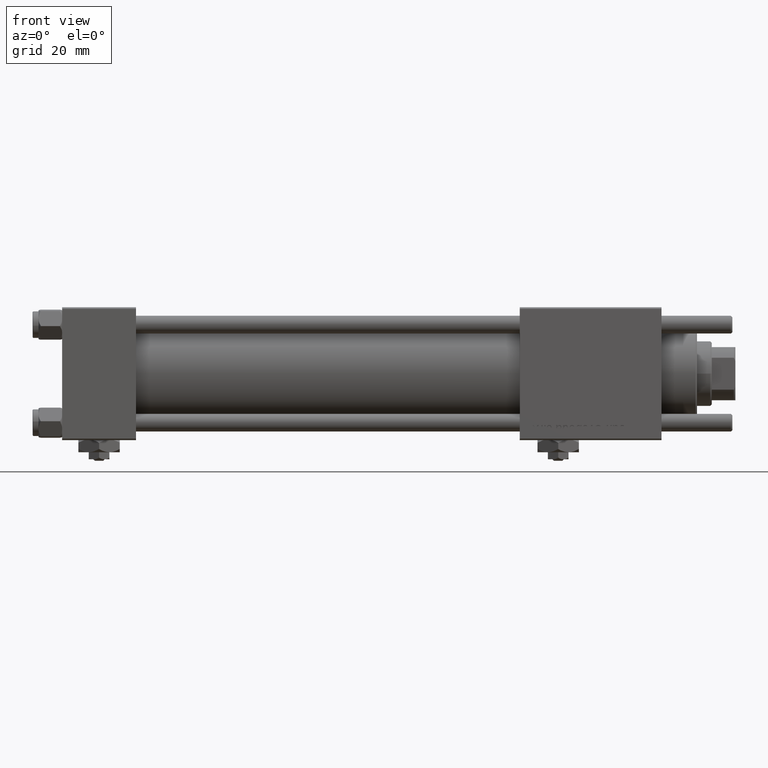
[diagram: clean part render]
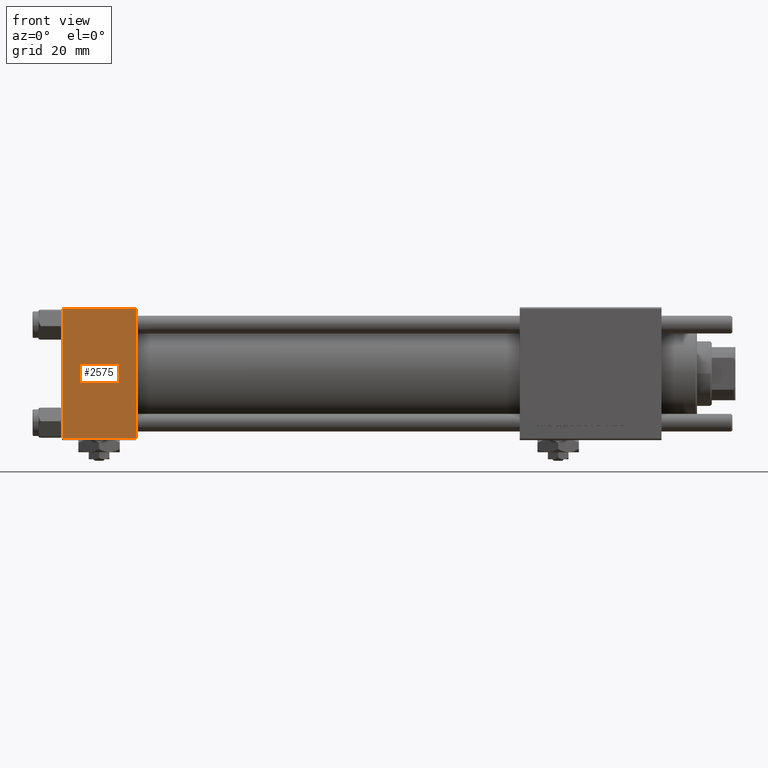
[diagram: same view with one face highlighted and labeled with its STEP entity id]
A machine part, front view. The second image highlights one B-rep face of the part: STEP entity #2575.
In plain terms, the highlighted planar face has unit normal (0, 1, 0).
Its self-contained STEP definition (entity closure, byte-faithful):
#2575 = ADVANCED_FACE ( 'NONE', ( #16263 ), #53286, .F. ) ;
#3332 = DIRECTION ( 'NONE',  ( -1.000000000000000000, 0.000000000000000000, 0.000000000000000000 ) ) ;
#5117 = VECTOR ( 'NONE', #10035, 1000.000000000000000 ) ;
#5590 = VERTEX_POINT ( 'NONE', #56670 ) ;
#7777 = CARTESIAN_POINT ( 'NONE',  ( 25.00000000000000000, -22.50000000000000000, 22.50000000000000000 ) ) ;
#7922 = VECTOR ( 'NONE', #40564, 1000.000000000000000 ) ;
#9609 = ORIENTED_EDGE ( 'NONE', *, *, #48490, .F. ) ;
#10035 = DIRECTION ( 'NONE',  ( 0.000000000000000000, 0.000000000000000000, -1.000000000000000000 ) ) ;
#10052 = VECTOR ( 'NONE', #59511, 1000.000000000000000 ) ;
#10927 = CARTESIAN_POINT ( 'NONE',  ( 0.000000000000000000, -22.50000000000000000, 22.50000000000000000 ) ) ;
#14526 = CARTESIAN_POINT ( 'NONE',  ( 0.000000000000000000, -22.50000000000000000, 22.00000000000000000 ) ) ;
#16263 = FACE_OUTER_BOUND ( 'NONE', #47409, .T. ) ;
#17568 = CARTESIAN_POINT ( 'NONE',  ( 0.000000000000000000, -22.50000000000000000, -21.99999999999997158 ) ) ;
#22465 = LINE ( 'NONE', #40984, #10052 ) ;
#24849 = LINE ( 'NONE', #10927, #5117 ) ;
#25207 = CARTESIAN_POINT ( 'NONE',  ( 25.00000000000000000, -22.50000000000000000, -21.99999999999997158 ) ) ;
#28109 = LINE ( 'NONE', #54537, #7922 ) ;
#28567 = VERTEX_POINT ( 'NONE', #14526 ) ;
#30316 = CARTESIAN_POINT ( 'NONE',  ( 25.00000000000000000, -22.50000000000000000, 22.00000000000000000 ) ) ;
#31686 = ORIENTED_EDGE ( 'NONE', *, *, #43208, .T. ) ;
#32877 = ORIENTED_EDGE ( 'NONE', *, *, #58342, .T. ) ;
#35380 = VECTOR ( 'NONE', #3332, 1000.000000000000000 ) ;
#38388 = ORIENTED_EDGE ( 'NONE', *, *, #50149, .T. ) ;
#39021 = DIRECTION ( 'NONE',  ( 0.000000000000000000, -0.000000000000000000, 1.000000000000000000 ) ) ;
#40564 = DIRECTION ( 'NONE',  ( 1.000000000000000000, 0.000000000000000000, 0.000000000000000000 ) ) ;
#40609 = VERTEX_POINT ( 'NONE', #25207 ) ;
#40984 = CARTESIAN_POINT ( 'NONE',  ( 25.00000000000000000, -22.50000000000000000, 22.50000000000000000 ) ) ;
#43208 = EDGE_CURVE ( 'NONE', #51264, #40609, #28109, .T. ) ;
#45303 = AXIS2_PLACEMENT_3D ( 'NONE', #7777, #53893, #39021 ) ;
#47409 = EDGE_LOOP ( 'NONE', ( #38388, #31686, #9609, #32877 ) ) ;
#48490 = EDGE_CURVE ( 'NONE', #5590, #40609, #22465, .T. ) ;
#49139 = LINE ( 'NONE', #30316, #35380 ) ;
#50149 = EDGE_CURVE ( 'NONE', #28567, #51264, #24849, .T. ) ;
#51264 = VERTEX_POINT ( 'NONE', #17568 ) ;
#53286 = PLANE ( 'NONE',  #45303 ) ;
#53893 = DIRECTION ( 'NONE',  ( -0.000000000000000000, 1.000000000000000000, 0.000000000000000000 ) ) ;
#54537 = CARTESIAN_POINT ( 'NONE',  ( 25.00000000000000000, -22.50000000000000000, -21.99999999999998579 ) ) ;
#56670 = CARTESIAN_POINT ( 'NONE',  ( 25.00000000000000000, -22.50000000000000000, 22.00000000000000000 ) ) ;
#58342 = EDGE_CURVE ( 'NONE', #5590, #28567, #49139, .T. ) ;
#59511 = DIRECTION ( 'NONE',  ( 0.000000000000000000, 0.000000000000000000, -1.000000000000000000 ) ) ;